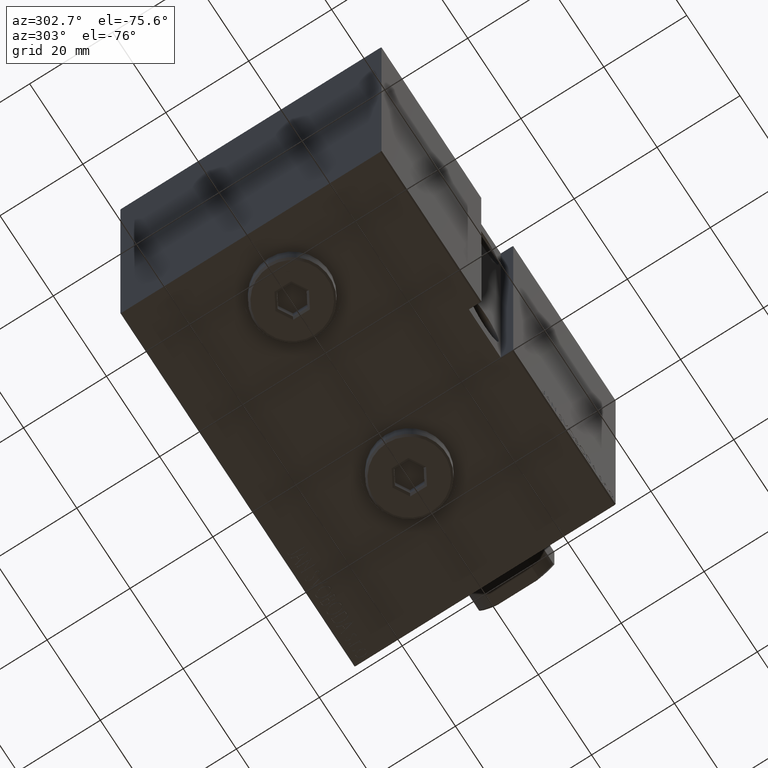
[diagram: clean part render]
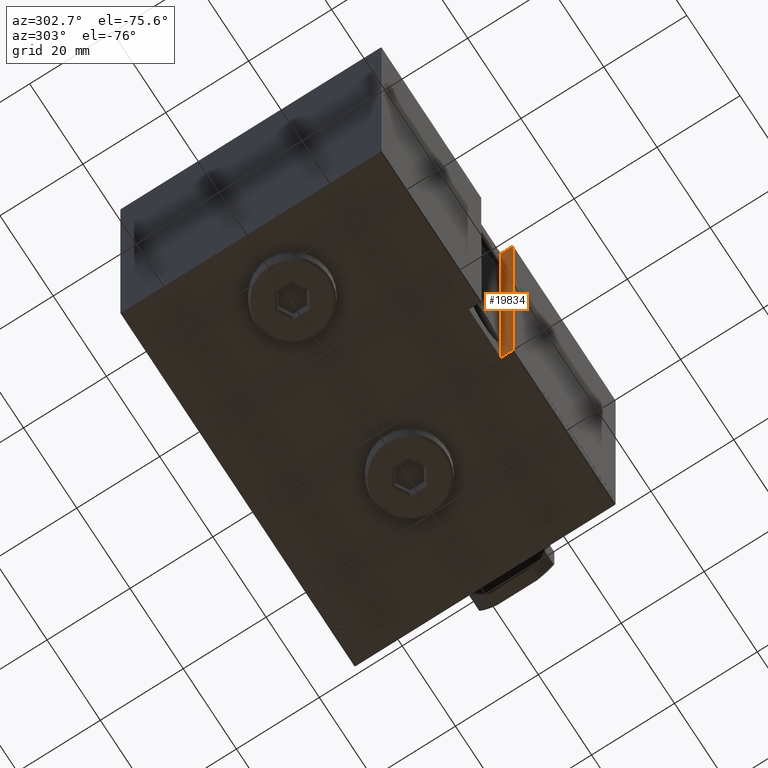
[diagram: same view with one face highlighted and labeled with its STEP entity id]
A machine part, auxiliary view. The second image highlights one B-rep face of the part: STEP entity #19834.
In plain terms, the highlighted planar face has unit normal (1, 0, 0).
Its self-contained STEP definition (entity closure, byte-faithful):
#12 = CARTESIAN_POINT ( 'NONE',  ( 38.50000000000000000, 31.20000000000001350, -42.50000000000000711 ) ) ;
#1749 = EDGE_CURVE ( 'NONE', #6595, #39825, #15685, .T. ) ;
#2902 = FACE_OUTER_BOUND ( 'NONE', #26098, .T. ) ;
#3075 = ORIENTED_EDGE ( 'NONE', *, *, #33243, .F. ) ;
#5075 = VERTEX_POINT ( 'NONE', #16614 ) ;
#5647 = DIRECTION ( 'NONE',  ( 5.772398745161006522E-17, 0.7071067811865393571, 0.7071067811865556774 ) ) ;
#5769 = LINE ( 'NONE', #19997, #9847 ) ;
#6034 = CARTESIAN_POINT ( 'NONE',  ( 38.50000000000000000, 28.50000000000000711, -42.50000000000000711 ) ) ;
#6595 = VERTEX_POINT ( 'NONE', #12 ) ;
#6784 = ORIENTED_EDGE ( 'NONE', *, *, #9106, .T. ) ;
#7005 = CARTESIAN_POINT ( 'NONE',  ( 38.50000000000000000, 28.50000000000000711, -42.50000000000000711 ) ) ;
#8323 = AXIS2_PLACEMENT_3D ( 'NONE', #6034, #19603, #33182 ) ;
#9106 = EDGE_CURVE ( 'NONE', #39825, #16114, #40976, .T. ) ;
#9547 = DIRECTION ( 'NONE',  ( 8.163404592832036431E-17, 0.000000000000000000, 1.000000000000000000 ) ) ;
#9847 = VECTOR ( 'NONE', #9547, 1000.000000000000000 ) ;
#9969 = VECTOR ( 'NONE', #17310, 1000.000000000000000 ) ;
#10968 = LINE ( 'NONE', #35223, #43300 ) ;
#11542 = VECTOR ( 'NONE', #5647, 1000.000000000000000 ) ;
#15173 = VECTOR ( 'NONE', #33414, 1000.000000000000000 ) ;
#15377 = ORIENTED_EDGE ( 'NONE', *, *, #42354, .T. ) ;
#15685 = LINE ( 'NONE', #29237, #11542 ) ;
#16114 = VERTEX_POINT ( 'NONE', #17104 ) ;
#16388 = VERTEX_POINT ( 'NONE', #29956 ) ;
#16614 = CARTESIAN_POINT ( 'NONE',  ( 38.50000000000000711, 31.19999999999999218, 42.49999999999995737 ) ) ;
#17015 = ORIENTED_EDGE ( 'NONE', *, *, #31183, .T. ) ;
#17104 = CARTESIAN_POINT ( 'NONE',  ( 38.50000000000000711, 31.50000000000000711, 42.20000000000001705 ) ) ;
#17310 = DIRECTION ( 'NONE',  ( 5.772398745160740281E-17, -0.7071067811865721087, 0.7071067811865230368 ) ) ;
#19603 = DIRECTION ( 'NONE',  ( -1.000000000000000000, 0.000000000000000000, 8.163404592832036431E-17 ) ) ;
#19834 = ADVANCED_FACE ( 'NONE', ( #2902 ), #40524, .F. ) ;
#19997 = CARTESIAN_POINT ( 'NONE',  ( 38.50000000000000000, 28.50000000000000711, -42.50000000000000711 ) ) ;
#23962 = CARTESIAN_POINT ( 'NONE',  ( 38.50000000000000711, 31.19999999999998863, 42.50000000000000000 ) ) ;
#24972 = DIRECTION ( 'NONE',  ( -0.000000000000000000, 1.000000000000000000, -0.000000000000000000 ) ) ;
#26098 = EDGE_LOOP ( 'NONE', ( #6784, #15377, #3075, #31166, #17015, #36997 ) ) ;
#26941 = CARTESIAN_POINT ( 'NONE',  ( 38.50000000000000000, 31.50000000000000711, -42.50000000000000711 ) ) ;
#27522 = LINE ( 'NONE', #23962, #9969 ) ;
#27701 = LINE ( 'NONE', #7005, #32763 ) ;
#27965 = CARTESIAN_POINT ( 'NONE',  ( 38.50000000000000000, 31.50000000000000711, -42.20000000000000284 ) ) ;
#29237 = CARTESIAN_POINT ( 'NONE',  ( 38.50000000000000000, 31.50000000000001421, -42.20000000000000284 ) ) ;
#29956 = CARTESIAN_POINT ( 'NONE',  ( 38.50000000000000000, 28.50000000000000711, -42.50000000000000711 ) ) ;
#31166 = ORIENTED_EDGE ( 'NONE', *, *, #33831, .F. ) ;
#31183 = EDGE_CURVE ( 'NONE', #16388, #6595, #27701, .T. ) ;
#32763 = VECTOR ( 'NONE', #37497, 1000.000000000000000 ) ;
#33182 = DIRECTION ( 'NONE',  ( 8.163404592832036431E-17, 0.000000000000000000, 1.000000000000000000 ) ) ;
#33243 = EDGE_CURVE ( 'NONE', #39844, #5075, #10968, .T. ) ;
#33414 = DIRECTION ( 'NONE',  ( 8.163404592832036431E-17, 0.000000000000000000, 1.000000000000000000 ) ) ;
#33831 = EDGE_CURVE ( 'NONE', #16388, #39844, #5769, .T. ) ;
#35223 = CARTESIAN_POINT ( 'NONE',  ( 38.50000000000000711, 28.50000000000000711, 42.49999999999995737 ) ) ;
#36997 = ORIENTED_EDGE ( 'NONE', *, *, #1749, .T. ) ;
#37497 = DIRECTION ( 'NONE',  ( -0.000000000000000000, 1.000000000000000000, -0.000000000000000000 ) ) ;
#39825 = VERTEX_POINT ( 'NONE', #27965 ) ;
#39844 = VERTEX_POINT ( 'NONE', #42657 ) ;
#40524 = PLANE ( 'NONE',  #8323 ) ;
#40976 = LINE ( 'NONE', #26941, #15173 ) ;
#42354 = EDGE_CURVE ( 'NONE', #16114, #5075, #27522, .T. ) ;
#42657 = CARTESIAN_POINT ( 'NONE',  ( 38.50000000000000711, 28.50000000000000711, 42.49999999999995737 ) ) ;
#43300 = VECTOR ( 'NONE', #24972, 1000.000000000000000 ) ;